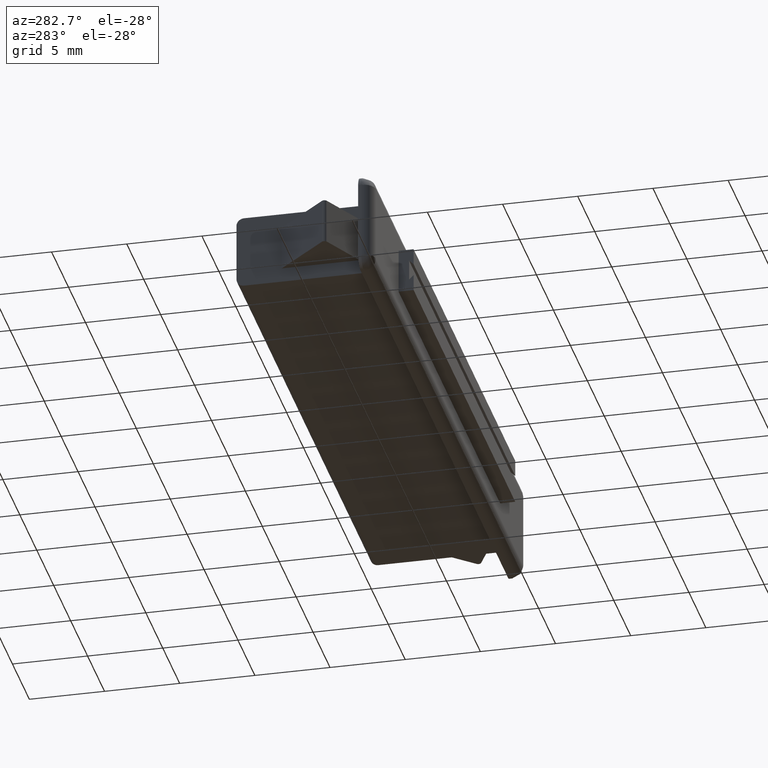
[diagram: clean part render]
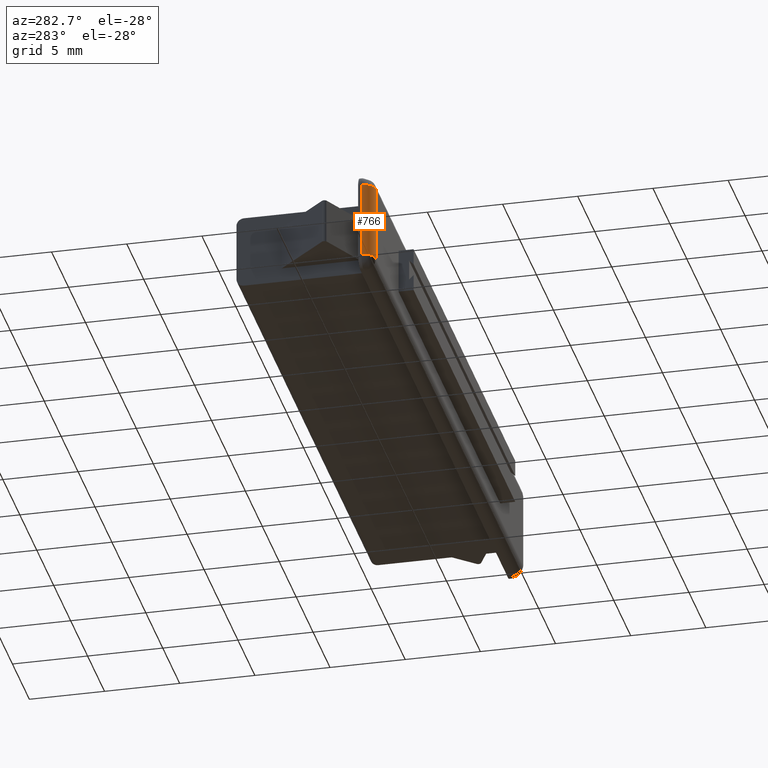
[diagram: same view with one face highlighted and labeled with its STEP entity id]
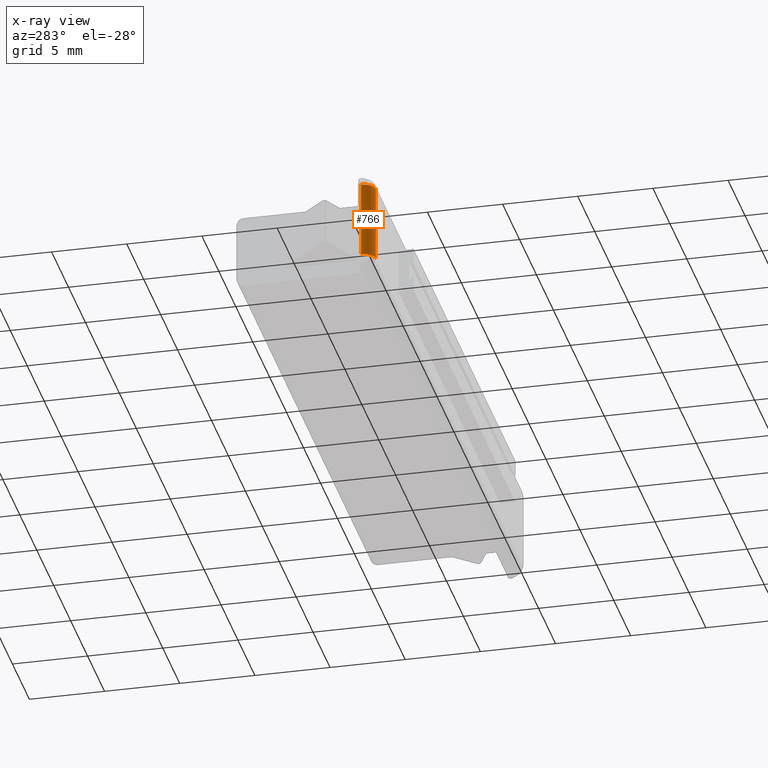
[diagram: x-ray of the same camera — body ghosted, the highlighted face saturated]
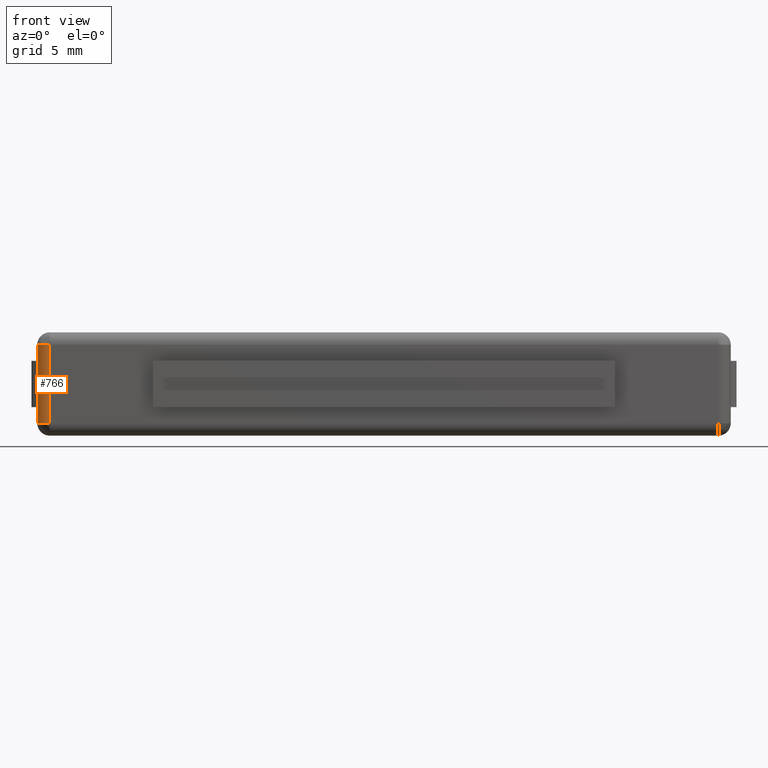
[diagram: same view with one face highlighted and labeled with its STEP entity id]
A machine part, auxiliary view. The second image highlights one B-rep face of the part: STEP entity #766.
The next image is the same camera in x-ray: the body ghosted, the highlighted face saturated — about 0% of this face is hidden behind the body in this view.
A second angle (front view) of the same face is appended — the face is thin or edge-on in the first view.
In plain terms, the highlighted face is a freeform B-spline surface patch.
Its self-contained STEP definition (entity closure, byte-faithful):
#598=CARTESIAN_POINT('',(-22.500000000000000,-8.900000000088689,-2.550000000000110));
#599=VERTEX_POINT('',#598);
#645=CARTESIAN_POINT('',(-21.699999999999999,-9.700000000088689,-2.550000000000110));
#646=VERTEX_POINT('',#645);
#660=CARTESIAN_POINT('',(-21.699999999999999,-9.700000000088689,-2.550000000000110));
#661=CARTESIAN_POINT('',(-22.500000000000000,-9.700000000088689,-2.550000000000110));
#662=CARTESIAN_POINT('',(-22.500000000000000,-8.900000000088689,-2.550000000000110));
#670=(BOUNDED_CURVE()B_SPLINE_CURVE(2,(#660,#661,#662),.UNSPECIFIED.,.F.,.U.)CURVE()GEOMETRIC_REPRESENTATION_ITEM()QUASI_UNIFORM_CURVE()RATIONAL_B_SPLINE_CURVE((1.0,0.707106781186548,1.0))REPRESENTATION_ITEM(''));
#671=EDGE_CURVE('',#646,#599,#670,.T.);
#722=CARTESIAN_POINT('',(-21.665104490107730,-9.699238577354175,-2.677500000000111));
#723=CARTESIAN_POINT('',(-21.665104490107730,-9.699238577354175,2.680687499999880));
#724=CARTESIAN_POINT('',(-22.560848211567230,-9.738347592837480,-2.677500000000112));
#725=CARTESIAN_POINT('',(-22.560848211567230,-9.738347592837480,2.680687499999880));
#726=CARTESIAN_POINT('',(-22.498034330585529,-8.843953526453870,-2.677500000000111));
#727=CARTESIAN_POINT('',(-22.498034330585529,-8.843953526453870,2.680687499999879));
#735=(BOUNDED_SURFACE()B_SPLINE_SURFACE(1,2,((#722,#724,#726),(#723,#725,#727)),.UNSPECIFIED.,.F.,.F.,.U.)B_SPLINE_SURFACE_WITH_KNOTS((2,2),(3,3),(0.0,5.358187499999991),(0.0,0.994386594966985),.UNSPECIFIED.)GEOMETRIC_REPRESENTATION_ITEM()RATIONAL_B_SPLINE_SURFACE(((1.0,0.664513898535122,0.996233561259061),(1.0,0.664513898535122,0.996233561259061)))REPRESENTATION_ITEM('')SURFACE());
#736=CARTESIAN_POINT('',(-21.699999999999999,-9.700000000088689,2.549999999999880));
#737=VERTEX_POINT('',#736);
#738=CARTESIAN_POINT('',(-22.500000000000000,-8.900000000088689,2.549999999999880));
#739=VERTEX_POINT('',#738);
#740=CARTESIAN_POINT('',(-21.699999999999999,-9.700000000088689,2.549999999999880));
#741=CARTESIAN_POINT('',(-22.500000000000000,-9.700000000088689,2.549999999999879));
#742=CARTESIAN_POINT('',(-22.500000000000000,-8.900000000088689,2.549999999999880));
#750=(BOUNDED_CURVE()B_SPLINE_CURVE(2,(#740,#741,#742),.UNSPECIFIED.,.F.,.U.)CURVE()GEOMETRIC_REPRESENTATION_ITEM()QUASI_UNIFORM_CURVE()RATIONAL_B_SPLINE_CURVE((1.0,0.707106781186548,1.0))REPRESENTATION_ITEM(''));
#751=EDGE_CURVE('',#737,#739,#750,.T.);
#752=ORIENTED_EDGE('',*,*,#751,.T.);
#753=CARTESIAN_POINT('',(-22.500000000000000,-8.900000000088689,-2.550000000000110));
#754=CARTESIAN_POINT('',(-22.500000000000000,-8.900000000088689,2.549999999999880));
#755=QUASI_UNIFORM_CURVE('',1,(#753,#754),.UNSPECIFIED.,.F.,.U.);
#756=EDGE_CURVE('',#599,#739,#755,.T.);
#757=ORIENTED_EDGE('',*,*,#756,.F.);
#758=ORIENTED_EDGE('',*,*,#671,.F.);
#759=CARTESIAN_POINT('',(-21.699999999999999,-9.700000000088689,2.549999999999880));
#760=CARTESIAN_POINT('',(-21.699999999999999,-9.700000000088689,-2.550000000000110));
#761=QUASI_UNIFORM_CURVE('',1,(#759,#760),.UNSPECIFIED.,.F.,.U.);
#762=EDGE_CURVE('',#737,#646,#761,.T.);
#763=ORIENTED_EDGE('',*,*,#762,.F.);
#764=EDGE_LOOP('',(#752,#757,#758,#763));
#765=FACE_OUTER_BOUND('',#764,.T.);
#766=ADVANCED_FACE('',(#765),#735,.T.);